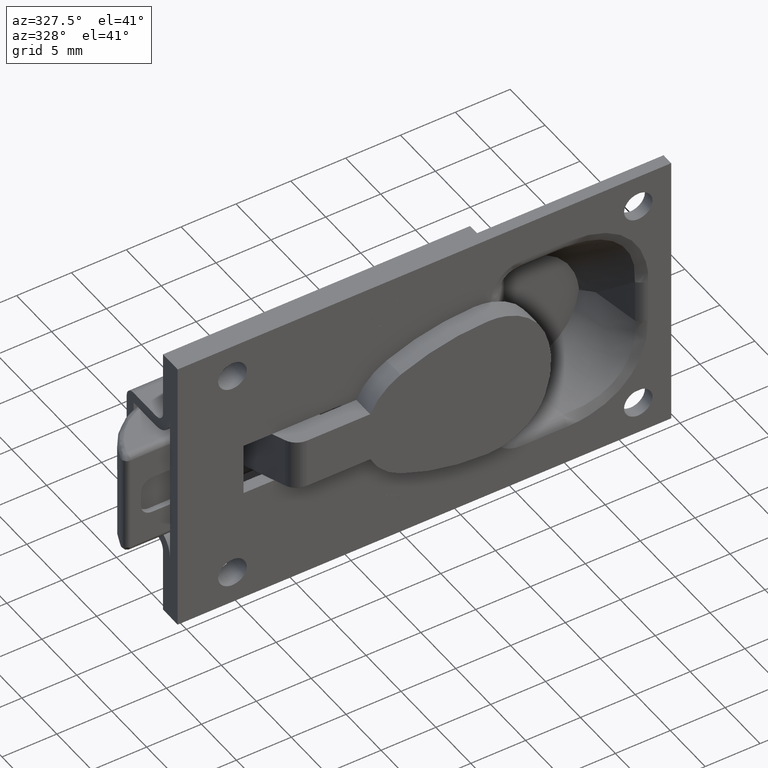
[diagram: clean part render]
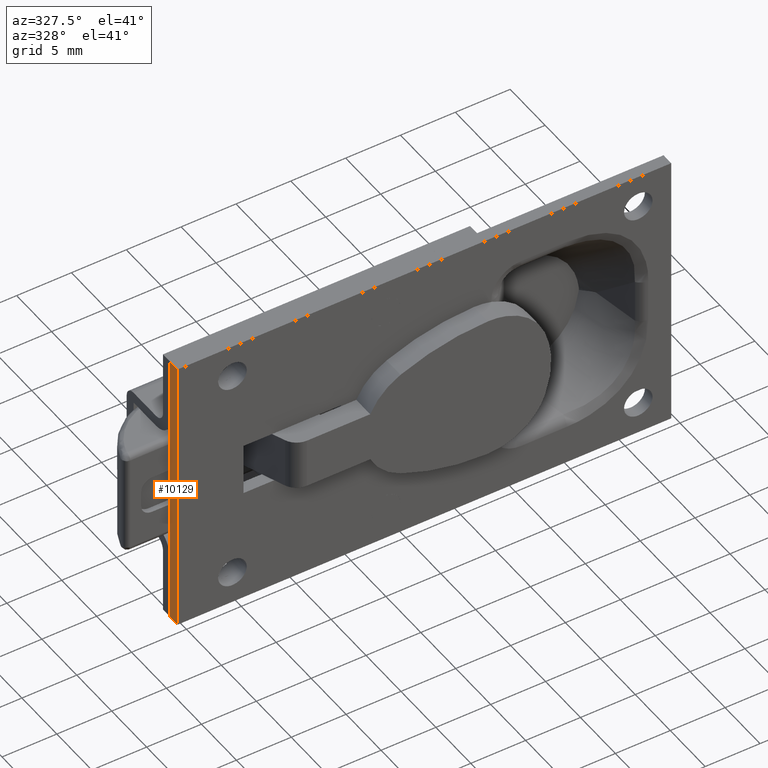
[diagram: same view with one face highlighted and labeled with its STEP entity id]
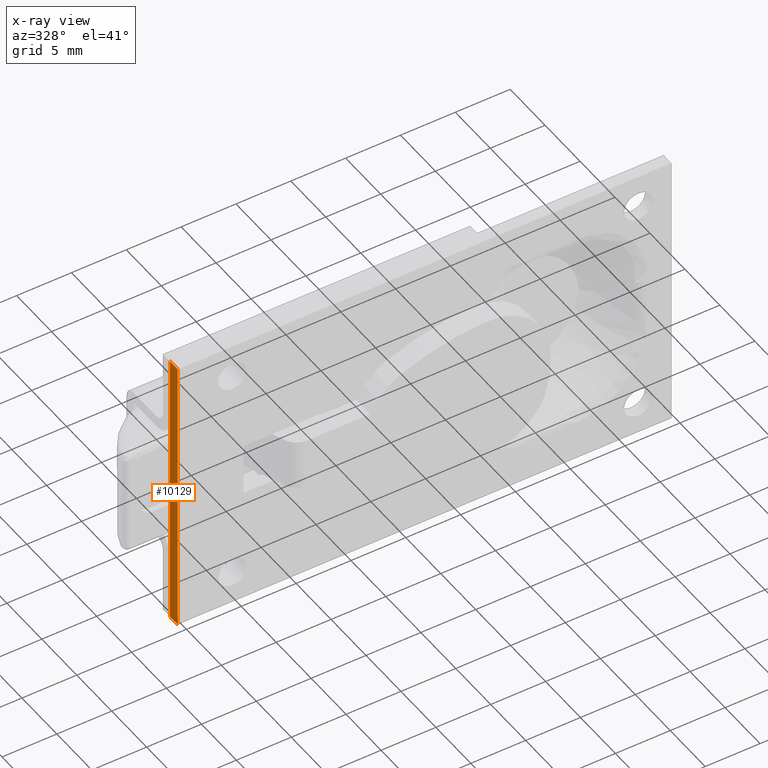
[diagram: x-ray of the same camera — body ghosted, the highlighted face saturated]
A machine part, auxiliary view. The second image highlights one B-rep face of the part: STEP entity #10129.
The next image is the same camera in x-ray: the body ghosted, the highlighted face saturated — about 0% of this face is hidden behind the body in this view.
In plain terms, the highlighted face is a freeform B-spline surface patch.
Its self-contained STEP definition (entity closure, byte-faithful):
#10019=CARTESIAN_POINT('',(-10.800003000000119,0.0,13.0));
#10020=VERTEX_POINT('',#10019);
#10028=CARTESIAN_POINT('',(-10.800003000000119,0.0,-13.0));
#10029=VERTEX_POINT('',#10028);
#10030=CARTESIAN_POINT('',(-10.800003000000119,0.0,-13.0));
#10031=CARTESIAN_POINT('',(-10.800003000000119,0.0,13.0));
#10032=QUASI_UNIFORM_CURVE('',1,(#10030,#10031),.UNSPECIFIED.,.F.,.U.);
#10033=EDGE_CURVE('',#10029,#10020,#10032,.T.);
#10102=CARTESIAN_POINT('',(-10.800003000000119,-0.054944848017996,14.298699949606959));
#10103=CARTESIAN_POINT('',(-10.800003000000119,-0.054944848017996,-14.298700646981301));
#10104=CARTESIAN_POINT('',(-10.800003000000119,1.154941877522289,14.298699949606959));
#10105=CARTESIAN_POINT('',(-10.800003000000119,1.154941877522289,-14.298700646981301));
#10106=B_SPLINE_SURFACE_WITH_KNOTS('',1,1,((#10102,#10104),(#10103,#10105)),.UNSPECIFIED.,.F.,.F.,.U.,(2,2),(2,2),(0.0,28.597400596588258),(0.041708334948495,0.958291687403247),.UNSPECIFIED.);
#10107=ORIENTED_EDGE('',*,*,#10033,.T.);
#10108=CARTESIAN_POINT('',(-10.800003000000119,1.099997000000074,13.0));
#10109=VERTEX_POINT('',#10108);
#10110=CARTESIAN_POINT('',(-10.800003000000119,1.099997000000074,13.0));
#10111=CARTESIAN_POINT('',(-10.800003000000119,0.0,13.0));
#10112=QUASI_UNIFORM_CURVE('',1,(#10110,#10111),.UNSPECIFIED.,.F.,.U.);
#10113=EDGE_CURVE('',#10109,#10020,#10112,.T.);
#10114=ORIENTED_EDGE('',*,*,#10113,.F.);
#10115=CARTESIAN_POINT('',(-10.800003000000119,1.099997000000074,-13.0));
#10116=VERTEX_POINT('',#10115);
#10117=CARTESIAN_POINT('',(-10.800003000000119,1.099997000000074,-13.0));
#10118=CARTESIAN_POINT('',(-10.800003000000119,1.099997000000074,13.0));
#10119=QUASI_UNIFORM_CURVE('',1,(#10117,#10118),.UNSPECIFIED.,.F.,.U.);
#10120=EDGE_CURVE('',#10116,#10109,#10119,.T.);
#10121=ORIENTED_EDGE('',*,*,#10120,.F.);
#10122=CARTESIAN_POINT('',(-10.800003000000119,1.099997000000074,-13.0));
#10123=CARTESIAN_POINT('',(-10.800003000000119,0.0,-13.0));
#10124=QUASI_UNIFORM_CURVE('',1,(#10122,#10123),.UNSPECIFIED.,.F.,.U.);
#10125=EDGE_CURVE('',#10116,#10029,#10124,.T.);
#10126=ORIENTED_EDGE('',*,*,#10125,.T.);
#10127=EDGE_LOOP('',(#10107,#10114,#10121,#10126));
#10128=FACE_OUTER_BOUND('',#10127,.T.);
#10129=ADVANCED_FACE('',(#10128),#10106,.F.);